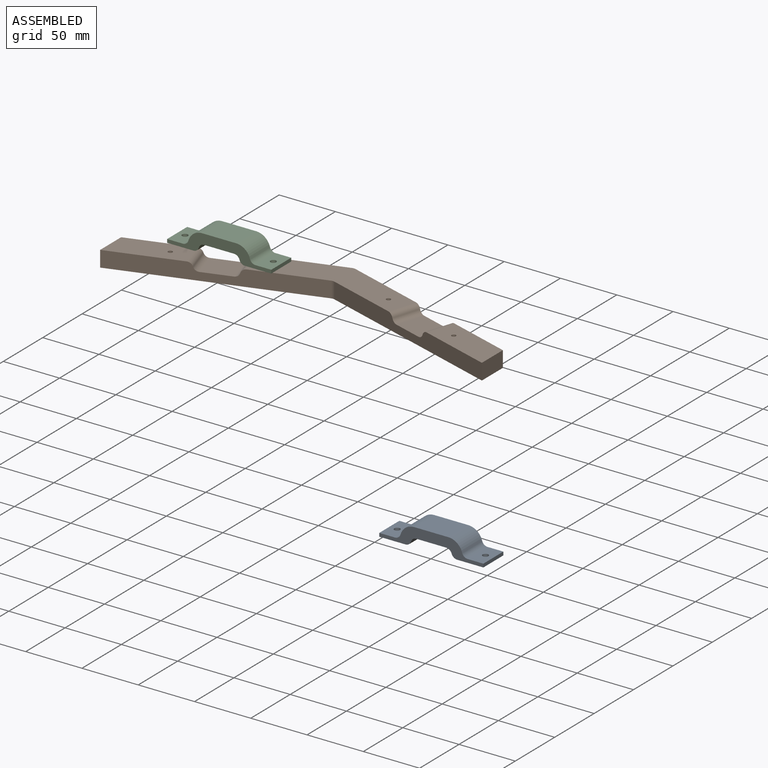
[diagram: assembled view]
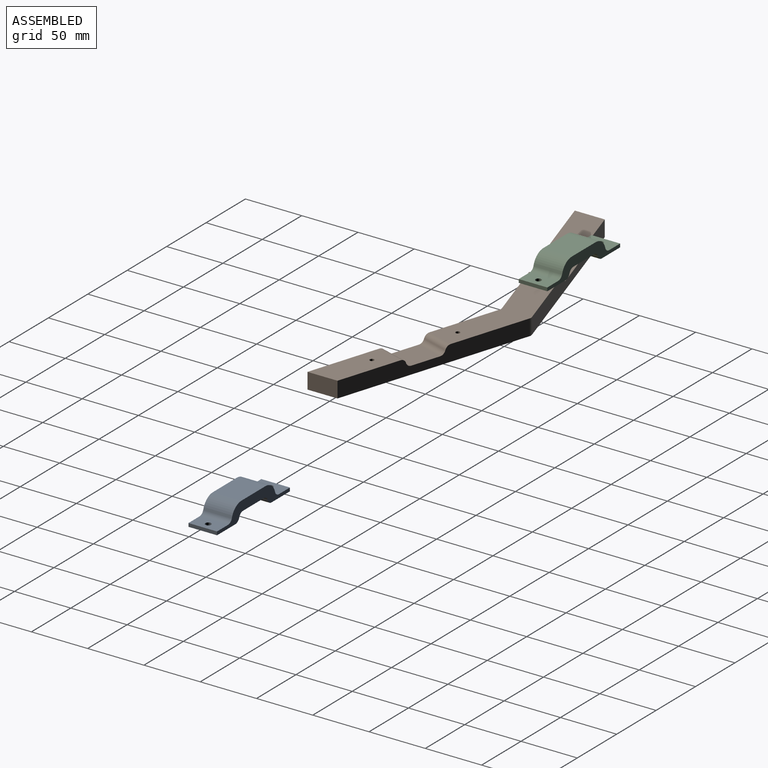
[diagram: assembled view, second angle]
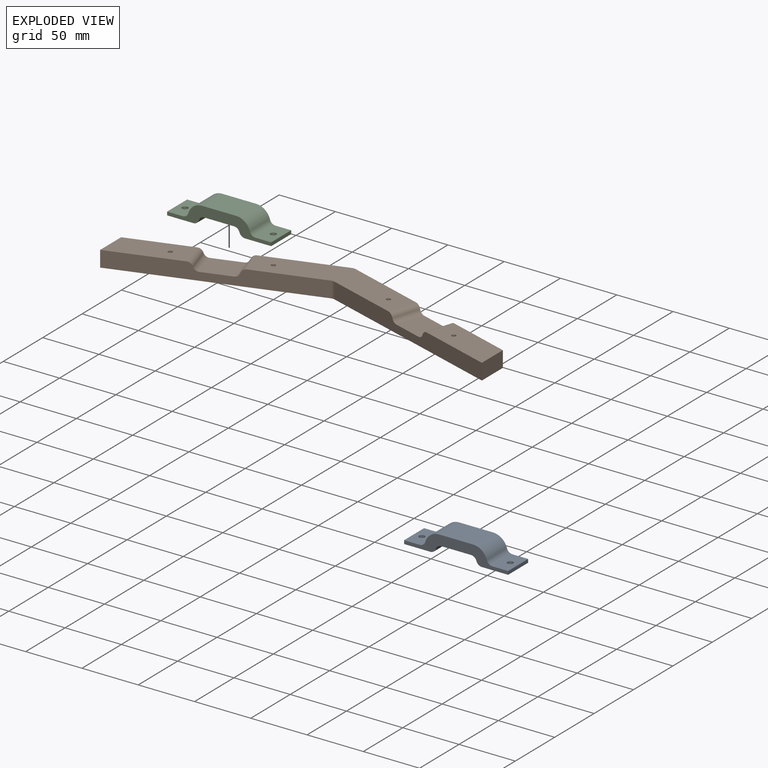
[diagram: exploded view]
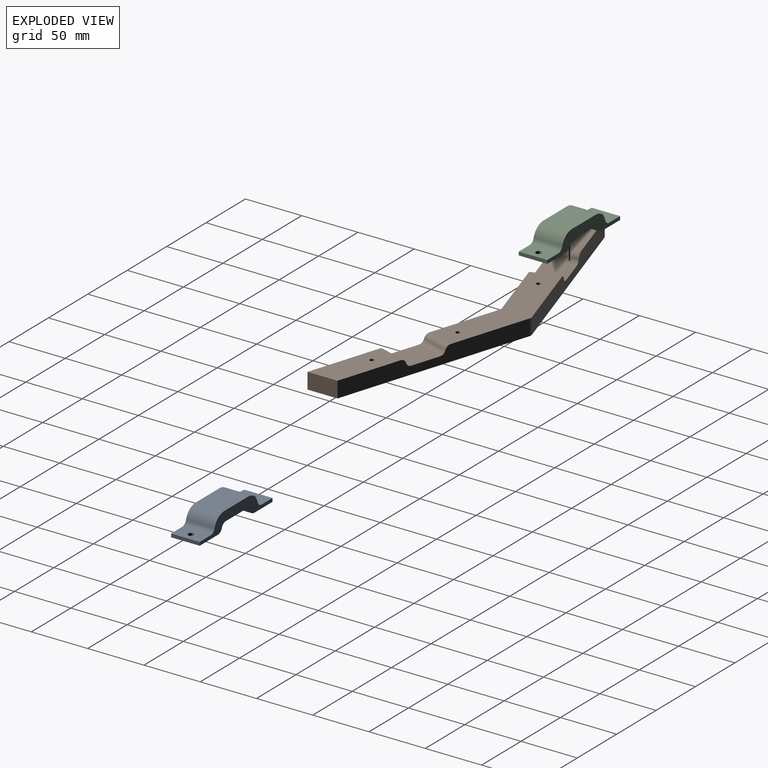
[diagram: exploded view, second angle]
ASSEMBLY  parts=3 mates=2
PART A: 20 faces, bbox 92.5x25.4x16 mm
  f0: plane 25.4x3.05mm, normal (-1,0,0), area 77.4mm2, adj f2,f3,f5,f9
  f1: plane 25.4x3.05mm, normal (1,0,0), area 77.4mm2, adj f2,f3,f6,f8
  f2: plane 92.46x16mm, normal (0,-1,0), area 684.2mm2, adj f0,f1,f4,f5,f6,f7,f8,f9
  f3: plane 92.46x16mm, normal (0,1,0), area 684.2mm2, adj f0,f1,f4,f5,f6,f7,f8,f9
  f4: plane 30.29x25.4mm, normal (0,0,1), area 769.4mm2, adj f2,f3,f12,f13
  f5: plane 25.4x13.97mm, normal (0,0,1), area 334.4mm2, adj f0,f2,f3,f10,f18
  f6: plane 25.4x13.97mm, normal (0,0,1), area 334.4mm2, adj f1,f2,f3,f11,f19
  f7: plane 26.42x25.4mm, normal (0,0,-1), area 671mm2, adj f2,f3,f14,f15
  f8: plane 25.4x23.33mm, normal (0,0,-1), area 572.1mm2, adj f1,f2,f3,f17,f19
  f9: plane 25.4x23.33mm, normal (0,0,-1), area 572.1mm2, adj f0,f2,f3,f16,f18
  f10: cylinder r=5.08mm len=25.4mm, axis (0,-1,0), area 167.2mm2, adj f2,f3,f5,f12
  f11: cylinder r=5.08mm len=25.4mm, axis (0,-1,0), area 167.2mm2, adj f2,f3,f6,f13
  f12: cylinder r=12.7mm len=25.4mm, axis (0,-1,0), area 418mm2, adj f2,f3,f4,f10
  f13: cylinder r=12.7mm len=25.4mm, axis (0,-1,0), area 418mm2, adj f2,f3,f4,f11
  f14: cylinder r=5.08mm len=25.4mm, axis (0,1,0), area 163.4mm2, adj f2,f3,f7,f16
  f15: cylinder r=5.08mm len=25.4mm, axis (0,-1,0), area 163.4mm2, adj f2,f3,f7,f17
  f16: cylinder r=5.08mm len=25.4mm, axis (0,1,0), area 163.4mm2, adj f2,f3,f9,f14
  f17: cylinder r=5.08mm len=25.4mm, axis (0,-1,0), area 163.4mm2, adj f2,f3,f8,f15
  f18: cylinder r=2.55mm len=5.11mm, axis (0,0,1), area 48.9mm2, adj f5,f9
  f19: cylinder r=2.55mm len=5.11mm, axis (0,0,1), area 48.9mm2, adj f6,f8
PART B: 26 faces, bbox 339.1x79.9x14.2 mm
  f0: plane 62.95x44.07mm, normal (0,0,1), area 1563.4mm2, adj f1,f5,f6,f19,f22
  f1: plane 168.04x52.98mm, normal (-0.3,-0.95,0), area 2249.4mm2, adj f0,f2,f5,f9,f11,f13,f14,f15
  f2: plane 141.17x46.23mm, normal (0,0,1), area 3533.6mm2, adj f1,f3,f4,f6,f12,f13,f18,f21
  f3: plane 168.04x52.98mm, normal (-0.3,0.95,0), area 2249.4mm2, adj f2,f7,f8,f9,f10,f12,f16,f17
  f4: plane 168.04x52.98mm, normal (0.3,-0.95,0), area 2249.4mm2, adj f2,f7,f8,f9,f10,f13,f16,f17
  f5: plane 26.63x14.22mm, normal (1,0,0), area 378.8mm2, adj f0,f1,f6,f9
  f6: plane 168.04x52.98mm, normal (0.3,0.95,0), area 2249.4mm2, adj f0,f2,f5,f9,f11,f12,f14,f15
  f7: plane 26.63x14.22mm, normal (-1,0,0), area 378.8mm2, adj f3,f4,f8,f9
  f8: plane 62.95x44.07mm, normal (0,0,1), area 1563.4mm2, adj f3,f4,f7,f20,f25
  f9: plane 339.14x79.85mm, normal (0,0,-1), area 8986.9mm2, adj f1,f3,f4,f5,f6,f7,f12,f13
  f10: plane 32.83x32.17mm, normal (0,0,1), area 671mm2, adj f3,f4,f16,f17
  f11: plane 32.83x32.17mm, normal (0,0,1), area 671mm2, adj f1,f6,f14,f15
  f12: cylinder r=5.08mm len=14.22mm, axis (0,0,1), area 44.1mm2, adj f2,f3,f6,f9
  f13: cylinder r=5.08mm len=14.22mm, axis (0,0,-1), area 44.1mm2, adj f1,f2,f4,f9
  f14: cylinder r=5.08mm len=25.68mm, axis (0.3,0.95,0), area 163.4mm2, adj f1,f6,f11,f18
  f15: cylinder r=5.08mm len=25.68mm, axis (-0.3,-0.95,0), area 163.4mm2, adj f1,f6,f11,f19
  f16: cylinder r=5.08mm len=25.68mm, axis (-0.3,0.95,0), area 163.4mm2, adj f3,f4,f10,f20
  f17: cylinder r=5.08mm len=25.68mm, axis (0.3,-0.95,0), area 163.4mm2, adj f3,f4,f10,f21
  f18: cylinder r=5.08mm len=25.68mm, axis (0.3,0.95,0), area 163.4mm2, adj f1,f2,f6,f14
  f19: cylinder r=5.08mm len=25.68mm, axis (-0.3,-0.95,0), area 163.4mm2, adj f0,f1,f6,f15
  f20: cylinder r=5.08mm len=25.68mm, axis (-0.3,0.95,0), area 163.4mm2, adj f3,f4,f8,f16
  f21: cylinder r=5.08mm len=25.68mm, axis (0.3,-0.95,0), area 163.4mm2, adj f2,f3,f4,f17
  f22: cylinder r=1.9mm len=14.22mm, axis (0,0,1), area 169.7mm2, adj f0,f9
  f23: cylinder r=1.9mm len=14.22mm, axis (0,0,1), area 169.7mm2, adj f2,f9
  f24: cylinder r=1.9mm len=14.22mm, axis (0,0,1), area 169.7mm2, adj f2,f9
  f25: cylinder r=1.9mm len=14.22mm, axis (0,0,1), area 169.7mm2, adj f8,f9
PART C: same geometry as A
PLACE A t=(151.7,-126.52,-8.63)mm
PLACE B t=(-22.23,-54.91,101.08)mm
PLACE C t=(-112.65,-18.2,115.3)mm
MATE planar C.f18 <-> B.f25  axis (0,0,-1) through (-151.9,-30.9,115.3)mm
MATE planar C.f19 <-> B.f24  axis (0,0,-1) through (-73.41,-30.9,115.3)mm
